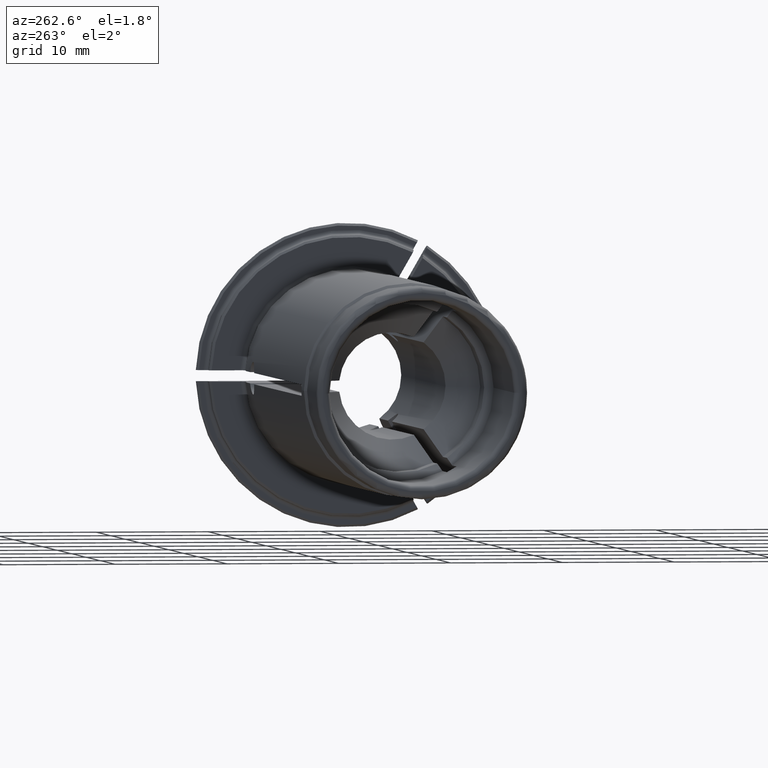
[diagram: clean part render]
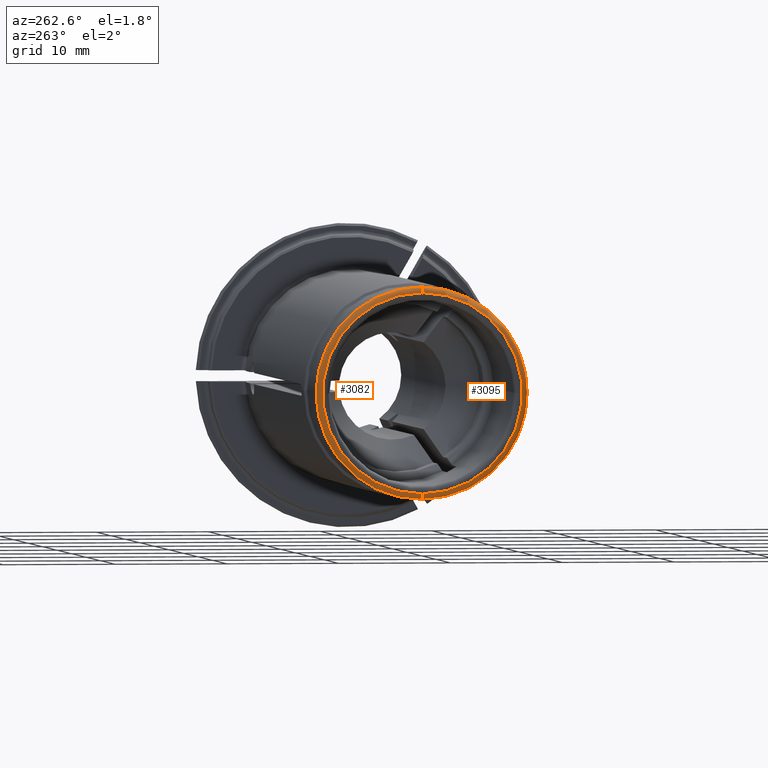
[diagram: same view with one multi-face feature highlighted, each face labeled with its STEP entity id]
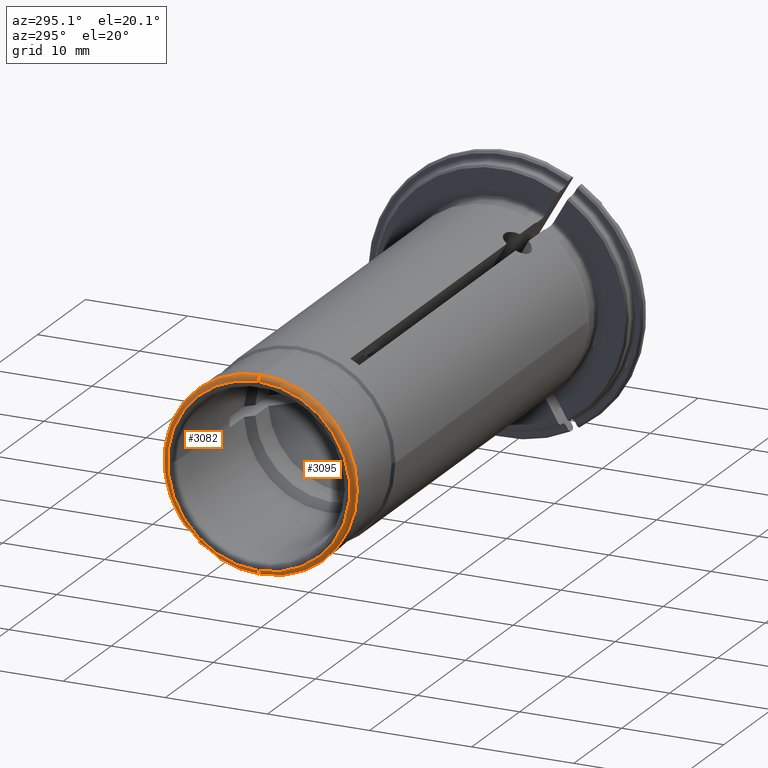
[diagram: same view with one multi-face feature highlighted, each face labeled with its STEP entity id]
A machine part, auxiliary view. The highlighted faces form ONE feature: a constant-radius fillet chain: 2 tangent blend faces with common blend radius 0.5 mm. The faces share edges in the B-rep.
A second angle (auxiliary view) of the same feature is appended — it is thin or edge-on in the first view.
Their STEP definitions:
[1] entity #3082 (Torus):
#1416=CARTESIAN_POINT('',(-5.05E1,0.E0,0.E0));
#1417=DIRECTION('',(-1.E0,0.E0,0.E0));
#1418=DIRECTION('',(0.E0,0.E0,1.E0));
#1419=AXIS2_PLACEMENT_3D('',#1416,#1417,#1418);
#1431=CARTESIAN_POINT('',(-5.E1,0.E0,8.925E0));
#1432=DIRECTION('',(0.E0,1.E0,0.E0));
#1433=DIRECTION('',(-1.E0,0.E0,0.E0));
#1434=AXIS2_PLACEMENT_3D('',#1431,#1432,#1433);
#1436=CARTESIAN_POINT('',(-5.E1,0.E0,-8.925E0));
#1437=DIRECTION('',(0.E0,-1.E0,0.E0));
#1438=DIRECTION('',(-1.E0,0.E0,1.065814103640E-14));
#1439=AXIS2_PLACEMENT_3D('',#1436,#1437,#1438);
#1459=CARTESIAN_POINT('',(-5.E1,0.E0,0.E0));
#1460=DIRECTION('',(-1.E0,0.E0,0.E0));
#1461=DIRECTION('',(0.E0,0.E0,1.E0));
#1462=AXIS2_PLACEMENT_3D('',#1459,#1460,#1461);
#1880=CARTESIAN_POINT('',(-5.05E1,0.E0,8.925E0));
#1881=CARTESIAN_POINT('',(-5.05E1,0.E0,-8.925E0));
#1882=VERTEX_POINT('',#1880);
#1883=VERTEX_POINT('',#1881);
#1884=CARTESIAN_POINT('',(-5.E1,0.E0,9.425E0));
#1885=CARTESIAN_POINT('',(-5.E1,0.E0,-9.425E0));
#1886=VERTEX_POINT('',#1884);
#1887=VERTEX_POINT('',#1885);
#3068=CARTESIAN_POINT('',(-5.E1,0.E0,0.E0));
#3069=DIRECTION('',(1.E0,0.E0,0.E0));
#3070=DIRECTION('',(0.E0,-1.504420519508E-2,9.998868295412E-1));
#3071=AXIS2_PLACEMENT_3D('',#3068,#3069,#3070);
#3072=TOROIDAL_SURFACE('',#3071,8.925E0,5.E-1);
#3073=ORIENTED_EDGE('',*,*,#3044,.T.);
#3075=ORIENTED_EDGE('',*,*,#3074,.T.);
#3077=ORIENTED_EDGE('',*,*,#3076,.F.);
#3079=ORIENTED_EDGE('',*,*,#3078,.F.);
#3080=EDGE_LOOP('',(#3073,#3075,#3077,#3079));
#3081=FACE_OUTER_BOUND('',#3080,.F.);
#3082=ADVANCED_FACE('',(#3081),#3072,.T.);
#1420=CIRCLE('',#1419,8.925E0);
#1435=CIRCLE('',#1434,5.E-1);
#1440=CIRCLE('',#1439,5.E-1);
#1463=CIRCLE('',#1462,9.425E0);
#3044=EDGE_CURVE('',#1882,#1883,#1420,.T.);
#3074=EDGE_CURVE('',#1883,#1887,#1440,.T.);
#3076=EDGE_CURVE('',#1886,#1887,#1463,.T.);
#3078=EDGE_CURVE('',#1882,#1886,#1435,.T.);
[2] entity #3095 (Torus):
#1421=CARTESIAN_POINT('',(-5.05E1,0.E0,0.E0));
#1422=DIRECTION('',(-1.E0,0.E0,0.E0));
#1423=DIRECTION('',(0.E0,0.E0,-1.E0));
#1424=AXIS2_PLACEMENT_3D('',#1421,#1422,#1423);
#1431=CARTESIAN_POINT('',(-5.E1,0.E0,8.925E0));
#1432=DIRECTION('',(0.E0,1.E0,0.E0));
#1433=DIRECTION('',(-1.E0,0.E0,0.E0));
#1434=AXIS2_PLACEMENT_3D('',#1431,#1432,#1433);
#1436=CARTESIAN_POINT('',(-5.E1,0.E0,-8.925E0));
#1437=DIRECTION('',(0.E0,-1.E0,0.E0));
#1438=DIRECTION('',(-1.E0,0.E0,1.065814103640E-14));
#1439=AXIS2_PLACEMENT_3D('',#1436,#1437,#1438);
#1441=CARTESIAN_POINT('',(-5.E1,0.E0,0.E0));
#1442=DIRECTION('',(-1.E0,0.E0,0.E0));
#1443=DIRECTION('',(0.E0,0.E0,-1.E0));
#1444=AXIS2_PLACEMENT_3D('',#1441,#1442,#1443);
#1880=CARTESIAN_POINT('',(-5.05E1,0.E0,8.925E0));
#1881=CARTESIAN_POINT('',(-5.05E1,0.E0,-8.925E0));
#1882=VERTEX_POINT('',#1880);
#1883=VERTEX_POINT('',#1881);
#1884=CARTESIAN_POINT('',(-5.E1,0.E0,9.425E0));
#1885=CARTESIAN_POINT('',(-5.E1,0.E0,-9.425E0));
#1886=VERTEX_POINT('',#1884);
#1887=VERTEX_POINT('',#1885);
#3083=CARTESIAN_POINT('',(-5.E1,0.E0,0.E0));
#3084=DIRECTION('',(1.E0,0.E0,0.E0));
#3085=DIRECTION('',(0.E0,1.504420519508E-2,-9.998868295412E-1));
#3086=AXIS2_PLACEMENT_3D('',#3083,#3084,#3085);
#3087=TOROIDAL_SURFACE('',#3086,8.925E0,5.E-1);
#3088=ORIENTED_EDGE('',*,*,#3046,.T.);
#3089=ORIENTED_EDGE('',*,*,#3078,.T.);
#3091=ORIENTED_EDGE('',*,*,#3090,.F.);
#3092=ORIENTED_EDGE('',*,*,#3074,.F.);
#3093=EDGE_LOOP('',(#3088,#3089,#3091,#3092));
#3094=FACE_OUTER_BOUND('',#3093,.F.);
#3095=ADVANCED_FACE('',(#3094),#3087,.T.);
#1425=CIRCLE('',#1424,8.925E0);
#1435=CIRCLE('',#1434,5.E-1);
#1440=CIRCLE('',#1439,5.E-1);
#1445=CIRCLE('',#1444,9.425E0);
#3046=EDGE_CURVE('',#1883,#1882,#1425,.T.);
#3074=EDGE_CURVE('',#1883,#1887,#1440,.T.);
#3078=EDGE_CURVE('',#1882,#1886,#1435,.T.);
#3090=EDGE_CURVE('',#1887,#1886,#1445,.T.);